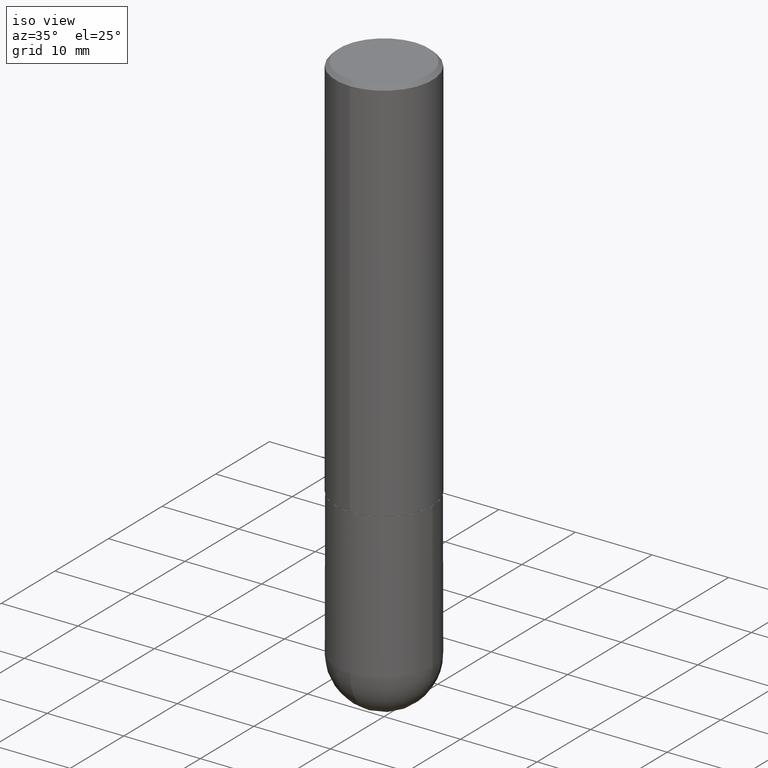
[diagram: clean part render]
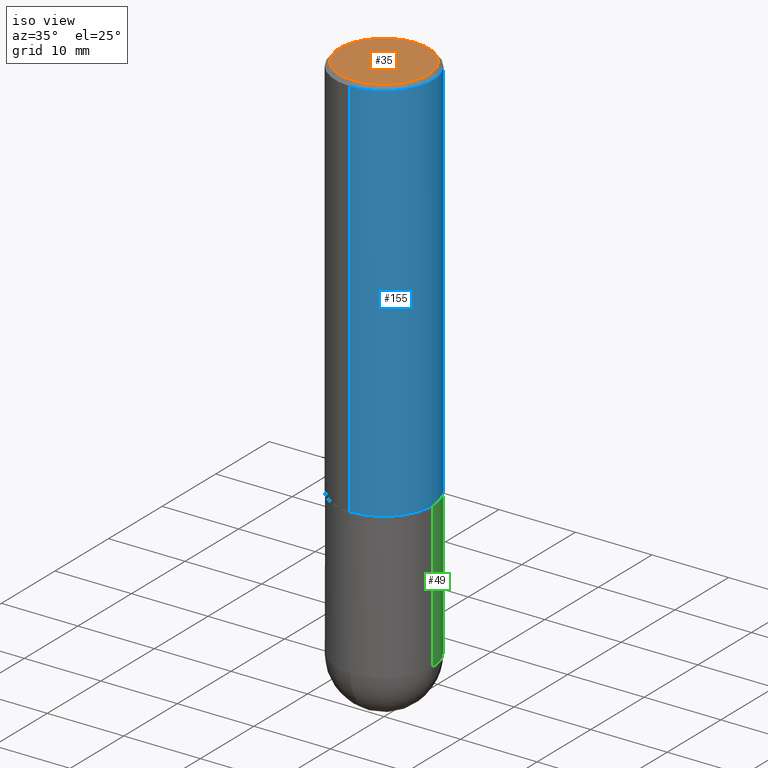
[diagram: same view with three faces highlighted in distinct colors, each labeled with its STEP entity id]
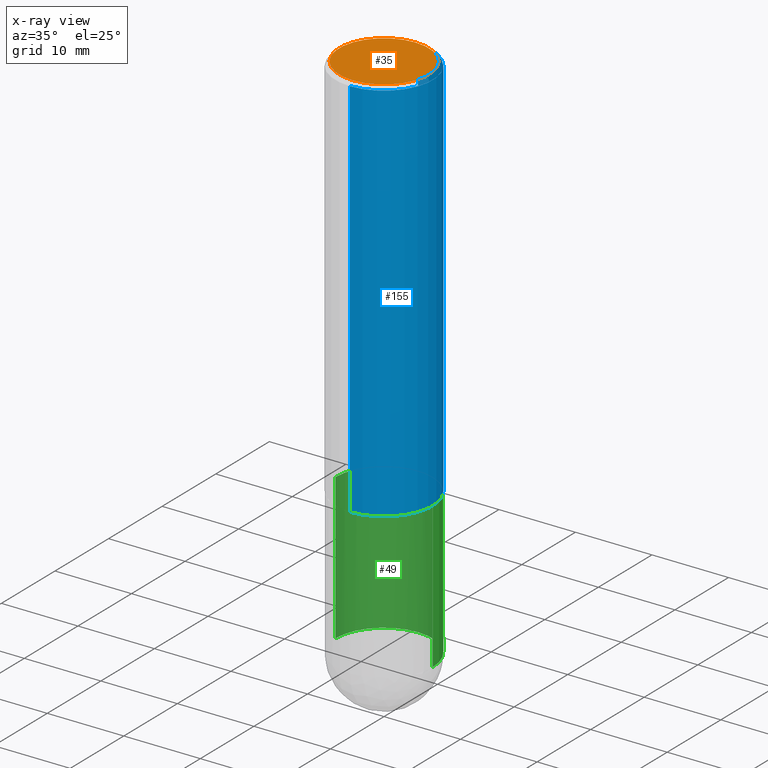
[diagram: x-ray of the same camera — body ghosted, the three highlighted faces saturated]
A machine part, iso view with three faces highlighted in distinct colors.
The next image is the same camera in x-ray (body ghosted, the three faces saturated) — at least one of them is partly hidden behind the body in this view.
Their STEP definitions:

[orange] entity #35 — the highlighted planar face has unit normal (0, -0, -1).
#8 = CARTESIAN_POINT ( 'NONE',  ( 1.675911042644703577E-15, 0.2299999999999998712, -7.048649206616136781E-16 ) ) ;
#10 = ORIENTED_EDGE ( 'NONE', *, *, #156, .T. ) ;
#26 = CARTESIAN_POINT ( 'NONE',  ( 1.606081415867840278E-15, 0.2299999999999998712, -7.539479758659027611E-16 ) ) ;
#35 = ADVANCED_FACE ( 'NONE', ( #218 ), #54, .F. ) ;
#43 = CARTESIAN_POINT ( 'NONE',  ( -2.400650449139562707E-45, 3.427410124241351957E-31, 9.816611040857844957E-17 ) ) ;
#54 = PLANE ( 'NONE',  #255 ) ;
#71 = VERTEX_POINT ( 'NONE', #89 ) ;
#75 = DIRECTION ( 'NONE',  ( -2.445498185827863151E-29, 3.491439265522576099E-15, 1.000000000000000000 ) ) ;
#89 = CARTESIAN_POINT ( 'NONE',  ( -1.646519519465166573E-15, -0.2299999999999998712, 9.011971414787705033E-16 ) ) ;
#136 = AXIS2_PLACEMENT_3D ( 'NONE', #43, #75, #388 ) ;
#137 = EDGE_LOOP ( 'NONE', ( #10, #244 ) ) ;
#156 = EDGE_CURVE ( 'NONE', #304, #71, #291, .T. ) ;
#196 = DIRECTION ( 'NONE',  ( -2.445498185827863151E-29, 3.491439265522576099E-15, 1.000000000000000000 ) ) ;
#198 = DIRECTION ( 'NONE',  ( -6.982962677686265922E-15, -1.000000000000000000, 3.491439265522576099E-15 ) ) ;
#213 = DIRECTION ( 'NONE',  ( 6.982962677686265922E-15, 1.000000000000000000, -3.491439265522576099E-15 ) ) ;
#218 = FACE_OUTER_BOUND ( 'NONE', #137, .T. ) ;
#244 = ORIENTED_EDGE ( 'NONE', *, *, #313, .T. ) ;
#255 = AXIS2_PLACEMENT_3D ( 'NONE', #26, #408, #213 ) ;
#291 = CIRCLE ( 'NONE', #406, 0.2299999999999998712 ) ;
#304 = VERTEX_POINT ( 'NONE', #8 ) ;
#313 = EDGE_CURVE ( 'NONE', #71, #304, #323, .T. ) ;
#323 = CIRCLE ( 'NONE', #136, 0.2299999999999998712 ) ;
#350 = CARTESIAN_POINT ( 'NONE',  ( -2.400650449139562707E-45, 3.427410124241351957E-31, 9.816611040857844957E-17 ) ) ;
#388 = DIRECTION ( 'NONE',  ( -6.982962677686265922E-15, -1.000000000000000000, 3.491439265522576099E-15 ) ) ;
#406 = AXIS2_PLACEMENT_3D ( 'NONE', #350, #196, #198 ) ;
#408 = DIRECTION ( 'NONE',  ( 2.445498185827862591E-29, -3.491439265522576099E-15, -1.000000000000000000 ) ) ;

[blue] entity #155 — the highlighted cylindrical surface (partial cylindrical patch) has radius 6.35 mm, axis along (-0, 0, 1).
#2 = EDGE_CURVE ( 'NONE', #392, #302, #327, .T. ) ;
#3 = DIRECTION ( 'NONE',  ( -2.445498185827862871E-29, 3.491439265522576099E-15, 1.000000000000000000 ) ) ;
#5 = VECTOR ( 'NONE', #3, 39.37007874015748143 ) ;
#13 = AXIS2_PLACEMENT_3D ( 'NONE', #212, #318, #79 ) ;
#30 = FACE_OUTER_BOUND ( 'NONE', #144, .T. ) ;
#31 = DIRECTION ( 'NONE',  ( -6.982962677686265922E-15, -1.000000000000000000, 3.278217592397112312E-15 ) ) ;
#33 = DIRECTION ( 'NONE',  ( -2.445498185827863151E-29, 3.491439265522576099E-15, 1.000000000000000000 ) ) ;
#34 = CIRCLE ( 'NONE', #256, 0.2500000000000002776 ) ;
#79 = DIRECTION ( 'NONE',  ( -6.982962677686265922E-15, -1.000000000000000000, 3.483106191921935554E-15 ) ) ;
#98 = DIRECTION ( 'NONE',  ( -6.982962677686266711E-15, -1.000000000000000000, 3.491439265522576099E-15 ) ) ;
#105 = ORIENTED_EDGE ( 'NONE', *, *, #2, .F. ) ;
#129 = EDGE_CURVE ( 'NONE', #360, #392, #353, .T. ) ;
#131 = LINE ( 'NONE', #262, #296 ) ;
#144 = EDGE_LOOP ( 'NONE', ( #272, #336, #105, #309 ) ) ;
#155 = ADVANCED_FACE ( 'NONE', ( #30 ), #223, .T. ) ;
#157 = CARTESIAN_POINT ( 'NONE',  ( 4.888550873469898599E-29, -6.979387091779629703E-15, -1.999000000000000110 ) ) ;
#165 = CARTESIAN_POINT ( 'NONE',  ( -1.715124499442882299E-15, -0.2500000000000000555, -0.01999999999999918510 ) ) ;
#194 = CARTESIAN_POINT ( 'NONE',  ( 1.776356839400276103E-15, 0.2499999999999933109, -1.999000000000000998 ) ) ;
#212 = CARTESIAN_POINT ( 'NONE',  ( 4.890996371655739930E-31, -6.982878531045171230E-17, -0.02000000000000005593 ) ) ;
#223 = CYLINDRICAL_SURFACE ( 'NONE', #261, 0.2500000000000001110 ) ;
#228 = EDGE_CURVE ( 'NONE', #287, #302, #131, .T. ) ;
#256 = AXIS2_PLACEMENT_3D ( 'NONE', #157, #288, #31 ) ;
#261 = AXIS2_PLACEMENT_3D ( 'NONE', #383, #33, #98 ) ;
#262 = CARTESIAN_POINT ( 'NONE',  ( 1.776356839400251254E-15, 0.2500000000000001110, -8.728598163806444193E-16 ) ) ;
#267 = EDGE_CURVE ( 'NONE', #360, #287, #34, .T. ) ;
#272 = ORIENTED_EDGE ( 'NONE', *, *, #267, .T. ) ;
#287 = VERTEX_POINT ( 'NONE', #194 ) ;
#288 = DIRECTION ( 'NONE',  ( -2.445498185827863151E-29, 3.491439265522576099E-15, 1.000000000000000000 ) ) ;
#293 = CARTESIAN_POINT ( 'NONE',  ( -1.745740669421567467E-15, -0.2500000000000001110, 8.728598163806444193E-16 ) ) ;
#296 = VECTOR ( 'NONE', #354, 39.37007874015748143 ) ;
#302 = VERTEX_POINT ( 'NONE', #385 ) ;
#309 = ORIENTED_EDGE ( 'NONE', *, *, #129, .F. ) ;
#318 = DIRECTION ( 'NONE',  ( -2.445498185827863151E-29, 3.491439265522576099E-15, 1.000000000000000000 ) ) ;
#326 = CARTESIAN_POINT ( 'NONE',  ( -1.745740669421519543E-15, -0.2500000000000072164, -1.998999999999999444 ) ) ;
#327 = CIRCLE ( 'NONE', #13, 0.2500000000000000000 ) ;
#336 = ORIENTED_EDGE ( 'NONE', *, *, #228, .T. ) ;
#353 = LINE ( 'NONE', #293, #5 ) ;
#354 = DIRECTION ( 'NONE',  ( -2.445498185827862871E-29, 3.491439265522576099E-15, 1.000000000000000000 ) ) ;
#360 = VERTEX_POINT ( 'NONE', #326 ) ;
#383 = CARTESIAN_POINT ( 'NONE',  ( 0.000000000000000000, 0.000000000000000000, 0.000000000000000000 ) ) ;
#385 = CARTESIAN_POINT ( 'NONE',  ( 1.745740669421566875E-15, 0.2499999999999999167, -0.02000000000000092676 ) ) ;
#392 = VERTEX_POINT ( 'NONE', #165 ) ;

[green] entity #49 — the highlighted cylindrical surface (partial cylindrical patch) has radius 6.35 mm, axis along (-0, 0, 1).
#12 = EDGE_CURVE ( 'NONE', #401, #45, #28, .T. ) ;
#28 = CIRCLE ( 'NONE', #159, 0.2500000000000000000 ) ;
#29 = DIRECTION ( 'NONE',  ( -2.445468806185136597E-29, 3.491481338843145583E-15, 1.000000000000000000 ) ) ;
#38 = CARTESIAN_POINT ( 'NONE',  ( 6.725039217009125641E-29, -9.601573681818653015E-15, -2.750000000000000444 ) ) ;
#45 = VERTEX_POINT ( 'NONE', #253 ) ;
#49 = ADVANCED_FACE ( 'NONE', ( #151 ), #215, .T. ) ;
#51 = CARTESIAN_POINT ( 'NONE',  ( 4.890937612370273754E-29, -6.982962677686291954E-15, -2.000000000000000444 ) ) ;
#57 = CARTESIAN_POINT ( 'NONE',  ( -0.2500000000000000000, -6.515911340352222809E-15, -2.750000000000000444 ) ) ;
#60 = CARTESIAN_POINT ( 'NONE',  ( 1.745740669421632745E-15, 0.2499999999999902300, -2.750000000000001332 ) ) ;
#63 = VECTOR ( 'NONE', #221, 39.37007874015748143 ) ;
#66 = LINE ( 'NONE', #192, #63 ) ;
#76 = VERTEX_POINT ( 'NONE', #57 ) ;
#82 = AXIS2_PLACEMENT_3D ( 'NONE', #363, #134, #266 ) ;
#92 = AXIS2_PLACEMENT_3D ( 'NONE', #38, #238, #303 ) ;
#94 = CARTESIAN_POINT ( 'NONE',  ( 0.2500000000000000000, -1.003800884917404153E-14, -2.750000000000000444 ) ) ;
#106 = EDGE_CURVE ( 'NONE', #173, #401, #66, .T. ) ;
#130 = CARTESIAN_POINT ( 'NONE',  ( -0.2500000000000000000, 1.776356839400250465E-15, -1.229733772563726445E-29 ) ) ;
#134 = DIRECTION ( 'NONE',  ( -2.445468806185136597E-29, 3.491481338843145583E-15, 1.000000000000000000 ) ) ;
#147 = EDGE_CURVE ( 'NONE', #76, #45, #409, .T. ) ;
#151 = FACE_OUTER_BOUND ( 'NONE', #278, .T. ) ;
#159 = AXIS2_PLACEMENT_3D ( 'NONE', #51, #29, #180 ) ;
#173 = VERTEX_POINT ( 'NONE', #94 ) ;
#180 = DIRECTION ( 'NONE',  ( 1.000000000000000000, -6.982962677686266711E-15, 0.000000000000000000 ) ) ;
#184 = VERTEX_POINT ( 'NONE', #60 ) ;
#192 = CARTESIAN_POINT ( 'NONE',  ( 0.2500000000000000000, -1.745740669421566678E-15, 1.219044193948983948E-29 ) ) ;
#199 = DIRECTION ( 'NONE',  ( -2.445468806185136877E-29, 3.491481338843145188E-15, 1.000000000000000000 ) ) ;
#207 = ORIENTED_EDGE ( 'NONE', *, *, #305, .T. ) ;
#214 = AXIS2_PLACEMENT_3D ( 'NONE', #343, #246, #368 ) ;
#215 = CYLINDRICAL_SURFACE ( 'NONE', #214, 0.2500000000000000000 ) ;
#220 = CIRCLE ( 'NONE', #92, 0.2500000000000000000 ) ;
#221 = DIRECTION ( 'NONE',  ( -2.445468806185136877E-29, 3.491481338843145188E-15, 1.000000000000000000 ) ) ;
#238 = DIRECTION ( 'NONE',  ( -2.445468806185136597E-29, 3.491481338843145583E-15, 1.000000000000000000 ) ) ;
#242 = ORIENTED_EDGE ( 'NONE', *, *, #147, .T. ) ;
#246 = DIRECTION ( 'NONE',  ( -2.445468806185136597E-29, 3.491481338843145583E-15, 1.000000000000000000 ) ) ;
#253 = CARTESIAN_POINT ( 'NONE',  ( -0.2500000000000000000, -6.515911340352221231E-15, -2.000000000000000444 ) ) ;
#266 = DIRECTION ( 'NONE',  ( 1.000000000000000000, -6.982962677686270655E-15, 0.000000000000000000 ) ) ;
#278 = EDGE_LOOP ( 'NONE', ( #387, #242, #314, #330, #207 ) ) ;
#303 = DIRECTION ( 'NONE',  ( 1.000000000000000000, -6.982962677686270655E-15, 0.000000000000000000 ) ) ;
#305 = EDGE_CURVE ( 'NONE', #173, #184, #370, .T. ) ;
#314 = ORIENTED_EDGE ( 'NONE', *, *, #12, .F. ) ;
#330 = ORIENTED_EDGE ( 'NONE', *, *, #106, .F. ) ;
#335 = CARTESIAN_POINT ( 'NONE',  ( 0.2500000000000000000, -8.728703347107858632E-15, -2.000000000000000444 ) ) ;
#343 = CARTESIAN_POINT ( 'NONE',  ( 0.000000000000000000, 0.000000000000000000, 0.000000000000000000 ) ) ;
#363 = CARTESIAN_POINT ( 'NONE',  ( 6.725039217009125641E-29, -9.601573681818653015E-15, -2.750000000000000444 ) ) ;
#368 = DIRECTION ( 'NONE',  ( 1.000000000000000000, -6.982962677686266711E-15, 4.876176775795935793E-29 ) ) ;
#370 = CIRCLE ( 'NONE', #82, 0.2500000000000000000 ) ;
#381 = EDGE_CURVE ( 'NONE', #184, #76, #220, .T. ) ;
#387 = ORIENTED_EDGE ( 'NONE', *, *, #381, .T. ) ;
#390 = VECTOR ( 'NONE', #199, 39.37007874015748143 ) ;
#401 = VERTEX_POINT ( 'NONE', #335 ) ;
#409 = LINE ( 'NONE', #130, #390 ) ;